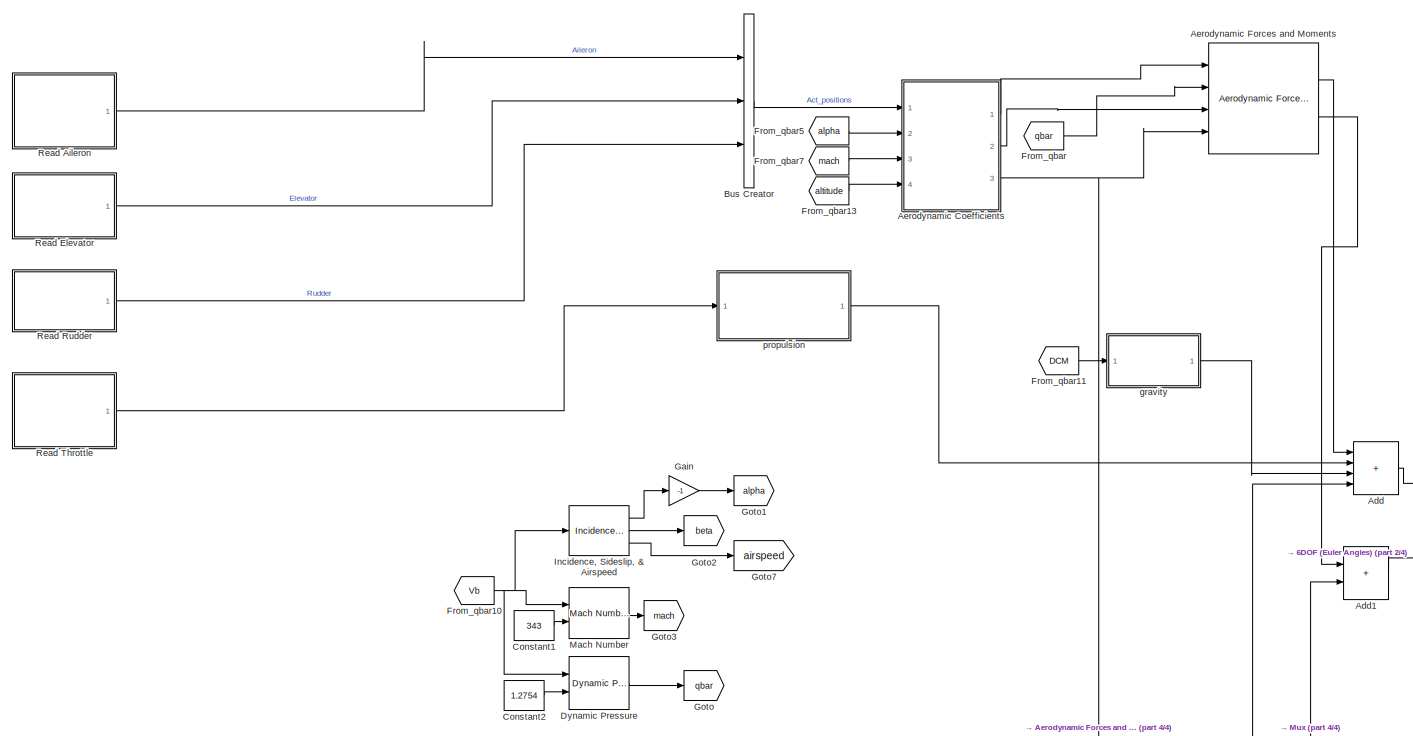
[diagram: root canvas - part 1/4, top left region]
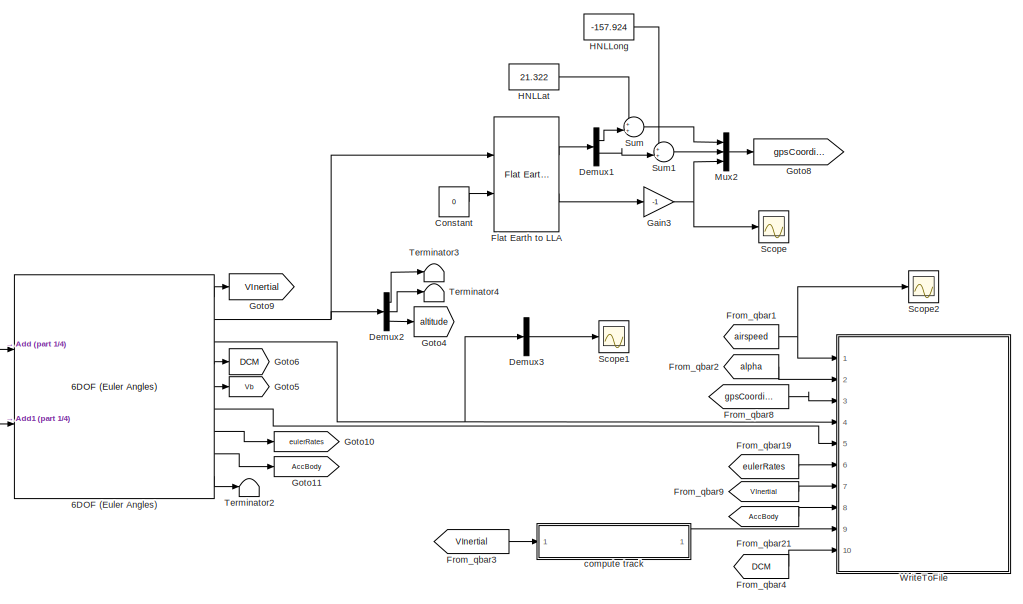
[diagram: root canvas - part 2/4, top right region]
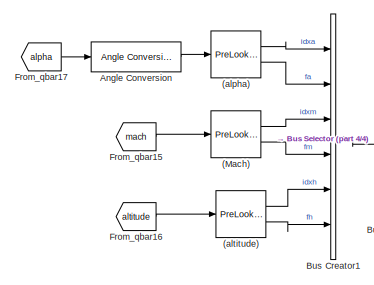
[diagram: root canvas - part 3/4, middle left region]
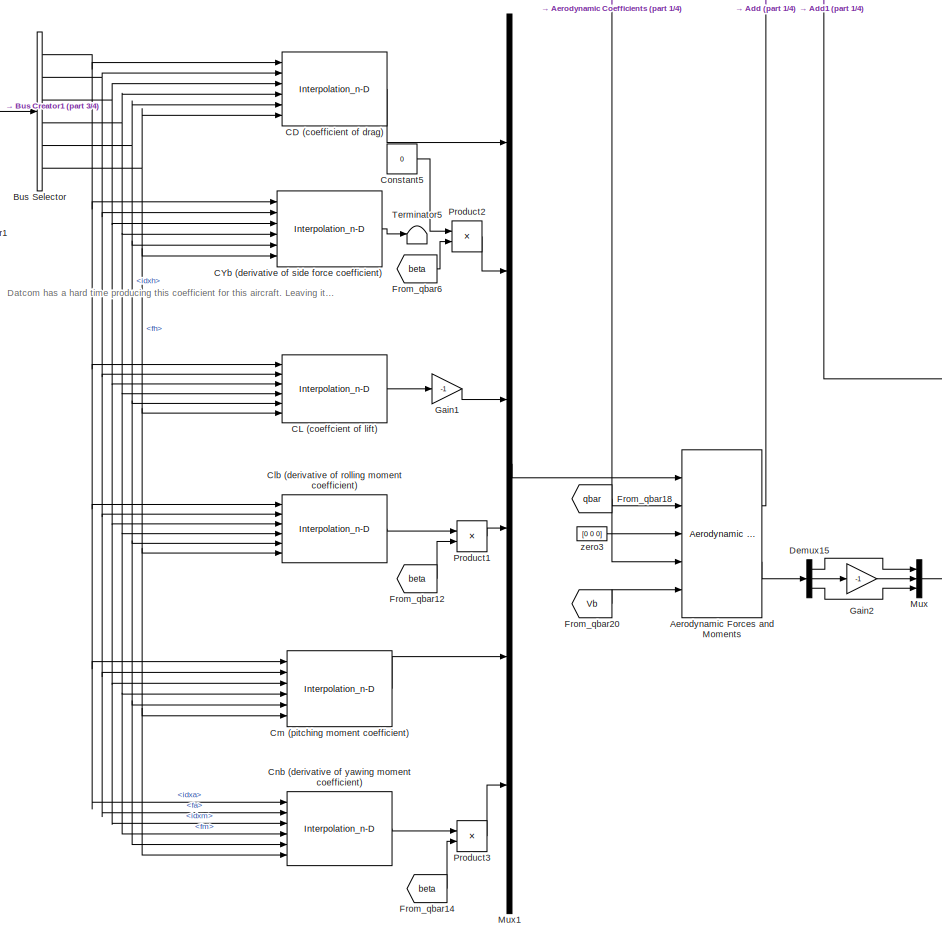
[diagram: root canvas - part 4/4, bottom center region]
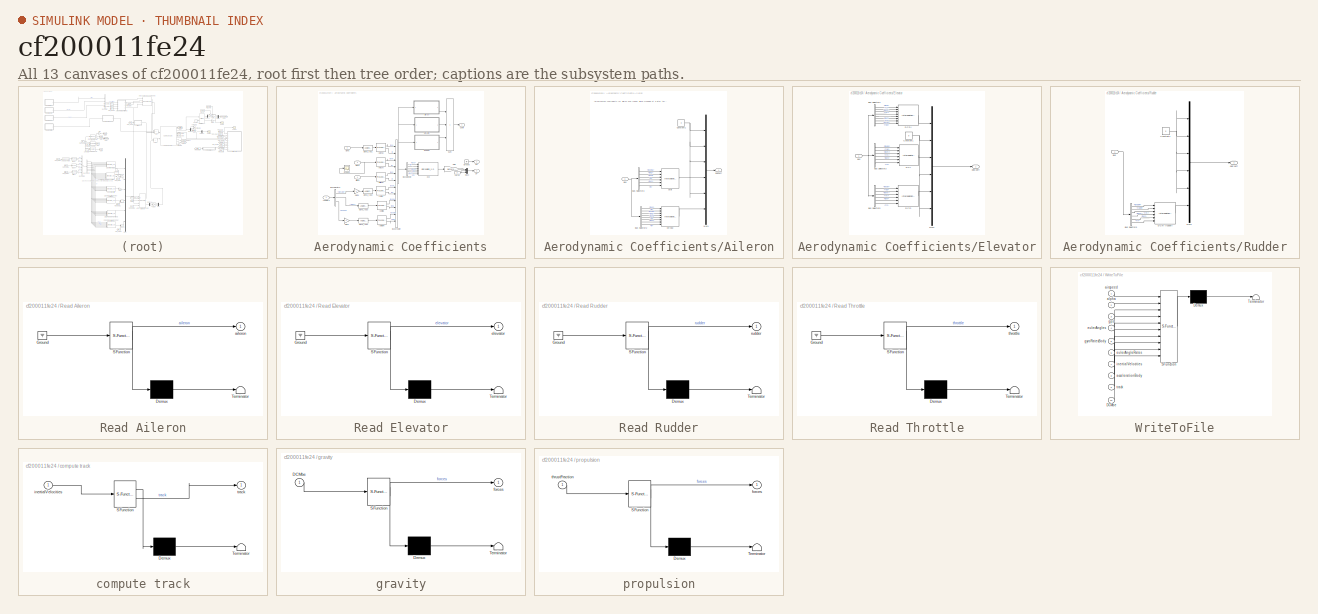
[diagram: thumbnail index - all 13 canvases of the model, root first then tree order]
MODEL slx_cf200011fe24
KIND model
CONFIG AbsTol = auto
CONFIG EnableMultiTasking = off
CONFIG FixedStep = 0.02
CONFIG MaxStep = auto
CONFIG MinStep = auto
CONFIG RelTol = 1e-3
CONFIG SampleTimeConstraint = Unconstrained
CONFIG SolverName = FixedStepAuto
CONFIG StartTime = 0.0
CONFIG StopTime = 3
BLOCK [PreLookup] (Mach)
  BeginIndexSearchUsingPreviousIndexResult = on
  BreakpointsData = aero{1}.mach
  DiagnosticForOutOfRangeInput = Warning
  ExtrapMethod = Linear
  FractionDataTypeStr = double
  IndexDataTypeStr = int32
  InputPortMap = u0
  Ports = [1, 2]
BLOCK [PreLookup] (alpha)
  BeginIndexSearchUsingPreviousIndexResult = on
  BreakpointsData = aero{1}.alpha
  DiagnosticForOutOfRangeInput = Warning
  ExtrapMethod = Linear
  FractionDataTypeStr = double
  IndexDataTypeStr = int32
  InputPortMap = u0
  Ports = [1, 2]
BLOCK [PreLookup] (altitude)
  BeginIndexSearchUsingPreviousIndexResult = on
  BreakpointsData = aero{1}.alt
  DiagnosticForOutOfRangeInput = Warning
  ExtrapMethod = Linear
  FractionDataTypeStr = double
  IndexDataTypeStr = int32
  InputPortMap = u0
  Ports = [1, 2]
BLOCK [Reference] 6DOF (Euler Angles)  REF=shared6dof/6DOF (Euler Angles)
  Ports = [2, 9]
  SourceBlock = shared6dof/6DOF (Euler Angles)
  SourceProductBaseCode = AE,PW,DR,MT,UV,VE
  SourceType = 6DOF EoM (Body Axis)
BLOCK [Sum] Add
  IconShape = rectangular
  Inputs = ++++
  Ports = [4, 1]
BLOCK [Sum] Add1
  IconShape = rectangular
  Ports = [2, 1]
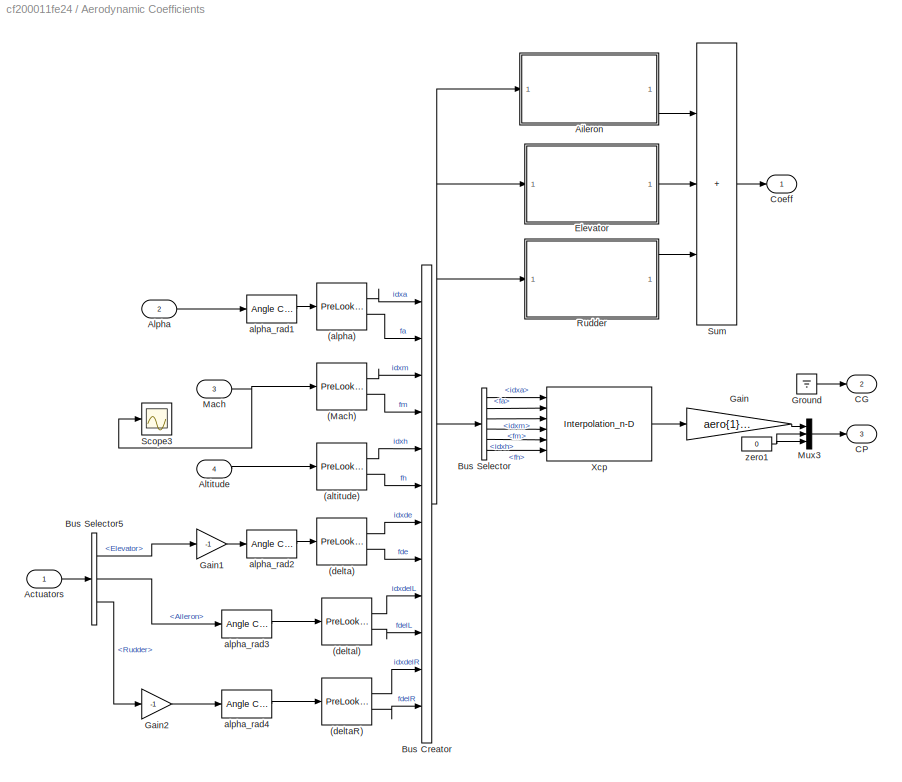
BLOCK [SubSystem] Aerodynamic Coefficients
  NameLocation = top
  Ports = [4, 3]
  RequestExecContextInheritance = off
BLOCK [PreLookup] Aerodynamic Coefficients/(Mach)
  BeginIndexSearchUsingPreviousIndexResult = on
  BreakpointsData = aero{1}.mach
  ExtrapMethod = Linear
  FractionDataTypeStr = double
  IndexDataTypeStr = int32
  InputPortMap = u0
  Ports = [1, 2]
BLOCK [PreLookup] Aerodynamic Coefficients/(alpha)
  BeginIndexSearchUsingPreviousIndexResult = on
  BreakpointsData = aero{1}.alpha
  ExtrapMethod = Linear
  FractionDataTypeStr = double
  IndexDataTypeStr = int32
  InputPortMap = u0
  Ports = [1, 2]
BLOCK [PreLookup] Aerodynamic Coefficients/(altitude)
  BeginIndexSearchUsingPreviousIndexResult = on
  BreakpointsData = aero{1}.alt
  ExtrapMethod = Linear
  FractionDataTypeStr = double
  IndexDataTypeStr = int32
  InputPortMap = u0
  Ports = [1, 2]
BLOCK [PreLookup] Aerodynamic Coefficients/(delta)
  BeginIndexSearchUsingPreviousIndexResult = on
  BreakpointsData = aero{1}.delta
  ExtrapMethod = Linear
  FractionDataTypeStr = double
  IndexDataTypeStr = int32
  InputPortMap = u0
  Ports = [1, 2]
BLOCK [PreLookup] Aerodynamic Coefficients/(deltaR)
  BeginIndexSearchUsingPreviousIndexResult = on
  BreakpointsData = aero{3}.delta
  ExtrapMethod = Linear
  FractionDataTypeStr = double
  IndexDataTypeStr = int32
  InputPortMap = u0
  Ports = [1, 2]
BLOCK [PreLookup] Aerodynamic Coefficients/(deltal)
  BeginIndexSearchUsingPreviousIndexResult = on
  BreakpointsData = aero{2}.deltal
  ExtrapMethod = Linear
  FractionDataTypeStr = double
  IndexDataTypeStr = int32
  InputPortMap = u0
  Ports = [1, 2]
BLOCK [Inport] Aerodynamic Coefficients/Actuators
BLOCK [SubSystem] Aerodynamic Coefficients/Aileron
  Ports = [1, 1]
  RequestExecContextInheritance = off
BLOCK [Inport] Aerodynamic Coefficients/Aileron/Bus
BLOCK [BusSelector] Aerodynamic Coefficients/Aileron/Bus Selector2
  OutputSignals = idxa,fa,idxdelL,fdelL,idxm,fm,idxh,fh
  Ports = [1, 8]
BLOCK [BusSelector] Aerodynamic Coefficients/Aileron/Bus Selector3
  OutputSignals = idxdelL,fdelL,idxm,fm,idxh,fh
  Ports = [1, 6]
BLOCK [Interpolation_n-D] Aerodynamic Coefficients/Aileron/CmYaw 
  InputPortMap = u0,u1,u2,u3,u4,u5,u6,u7
  NumberOfTableDimensions = 4
  Ports = [8, 1]
  RemoveProtectionIndex = on
  Table = aero{2}.cn_asy
BLOCK [Constant] Aerodynamic Coefficients/Aileron/Constant1
  Value = 0
BLOCK [Mux] Aerodynamic Coefficients/Aileron/Mux1
  Inputs = 6
  Ports = [6, 1]
BLOCK [Interpolation_n-D] Aerodynamic Coefficients/Aileron/clroll
  InputPortMap = u0,u1,u2,u3,u4,u5
  NumberOfTableDimensions = 3
  Ports = [6, 1]
  RemoveProtectionIndex = on
  Table = permute(aero{2}.clroll,[1  2  3])
BLOCK [Outport] Aerodynamic Coefficients/Aileron/delCoeff
  VectorParamsAs1DForOutWhenUnconnected = off
BLOCK [Inport] Aerodynamic Coefficients/Alpha
  Port = 2
BLOCK [Inport] Aerodynamic Coefficients/Altitude
  Port = 4
BLOCK [BusCreator] Aerodynamic Coefficients/Bus Creator
  DisplayOption = bar
  InheritFromInputs = on
  Inputs = 12
  Ports = [12, 1]
BLOCK [BusSelector] Aerodynamic Coefficients/Bus Selector
  OutputSignals = idxa,fa,idxm,fm,idxh,fh
  Ports = [1, 6]
BLOCK [BusSelector] Aerodynamic Coefficients/Bus Selector5
  OutputSignals = Elevator,Aileron,Rudder
  Ports = [1, 3]
BLOCK [Outport] Aerodynamic Coefficients/CG
  InitialOutput = 0
  Port = 2
  PortDimensions = 3
  VectorParamsAs1DForOutWhenUnconnected = off
BLOCK [Outport] Aerodynamic Coefficients/CP
  InitialOutput = 0
  Port = 3
  PortDimensions = 3
  VectorParamsAs1DForOutWhenUnconnected = off
BLOCK [Outport] Aerodynamic Coefficients/Coeff
  InitialOutput = 0
  VectorParamsAs1DForOutWhenUnconnected = off
BLOCK [SubSystem] Aerodynamic Coefficients/Elevator
  Ports = [1, 1]
  RequestExecContextInheritance = off
BLOCK [Inport] Aerodynamic Coefficients/Elevator/Bus
  NameLocation = top
BLOCK [BusSelector] Aerodynamic Coefficients/Elevator/Bus Selector2
  OutputSignals = idxa,fa,idxm,fm,idxh,fh,idxde,fde
  Ports = [1, 8]
BLOCK [BusSelector] Aerodynamic Coefficients/Elevator/Bus Selector3
  OutputSignals = idxde,fde,idxm,fm,idxh,fh
  Ports = [1, 6]
BLOCK [BusSelector] Aerodynamic Coefficients/Elevator/Bus Selector5
  OutputSignals = idxde,fde,idxm,fm,idxh,fh
  Ports = [1, 6]
BLOCK [Constant] Aerodynamic Coefficients/Elevator/Constant1
  Value = 0
BLOCK [Interpolation_n-D] Aerodynamic Coefficients/Elevator/DCDI
  InputPortMap = u0,u1,u2,u3,u4,u5,u6,u7
  NumberOfTableDimensions = 4
  Ports = [8, 1]
  RemoveProtectionIndex = on
  Table = permute(aero{1}.dcdi_sym,[1 3 4 2 ])
BLOCK [Interpolation_n-D] Aerodynamic Coefficients/Elevator/DCL
  InputPortMap = u0,u1,u2,u3,u4,u5
  NumberOfTableDimensions = 3
  Ports = [6, 1]
  RemoveProtectionIndex = on
  Table = permute(aero{1}.dcl_sym,[1  2  3])
BLOCK [Interpolation_n-D] Aerodynamic Coefficients/Elevator/DCm
  InputPortMap = u0,u1,u2,u3,u4,u5
  NumberOfTableDimensions = 3
  Ports = [6, 1]
  RemoveProtectionIndex = on
  Table = permute(aero{1}.dcm_sym,[1  2  3])
BLOCK [Mux] Aerodynamic Coefficients/Elevator/Mux1
  Inputs = 6
  Ports = [6, 1]
BLOCK [Outport] Aerodynamic Coefficients/Elevator/delCoeff
  VectorParamsAs1DForOutWhenUnconnected = off
BLOCK [Gain] Aerodynamic Coefficients/Gain
  Gain = aero{1}.cbar
BLOCK [Gain] Aerodynamic Coefficients/Gain1
  Gain = -1
BLOCK [Gain] Aerodynamic Coefficients/Gain2
  Gain = -1
BLOCK [Ground] Aerodynamic Coefficients/Ground
BLOCK [Inport] Aerodynamic Coefficients/Mach
  Port = 3
BLOCK [Mux] Aerodynamic Coefficients/Mux3
  DisplayOption = bar
  Inputs = 3
  Ports = [3, 1]
BLOCK [SubSystem] Aerodynamic Coefficients/Rudder
  Ports = [1, 1]
  RequestExecContextInheritance = off
BLOCK [Inport] Aerodynamic Coefficients/Rudder/Bus
  NameLocation = top
BLOCK [BusSelector] Aerodynamic Coefficients/Rudder/Bus Selector5
  OutputSignals = idxdelR,fdelR,idxm,fm,idxh,fh
  Ports = [1, 6]
BLOCK [Constant] Aerodynamic Coefficients/Rudder/Constant1
  Value = 0
BLOCK [Interpolation_n-D] Aerodynamic Coefficients/Rudder/DCm (rudder)
  InputPortMap = u0,u1,u2,u3,u4,u5
  NumberOfTableDimensions = 3
  Ports = [6, 1]
  RemoveProtectionIndex = on
  Table = permute(aero{3}.dcm_sym,[1  2  3])
BLOCK [Mux] Aerodynamic Coefficients/Rudder/Mux1
  Inputs = 6
  Ports = [6, 1]
BLOCK [Outport] Aerodynamic Coefficients/Rudder/delCoeff
  VectorParamsAs1DForOutWhenUnconnected = off
BLOCK [Scope] Aerodynamic Coefficients/Scope3
  Floating = off
  NumInputPorts = 1
  Ports = [1]
  ScopeSpecificationString = Simulink.scopes.TimeScopeBlockCfg('CurrentConfiguration', extmgr.ConfigurationSet(extmgr.Configuration('Core','General UI',true),extmgr.Configuration('Core','Source UI',true),extmgr.Configuration('Sources','WiredSimulink',true,'DataLoggingVariableName','ScopeData8'),extmgr.Configuration('Visuals','Time Domain',true,'SerializedDisplays',{struct('MinYLimReal','0.03517','MaxYLimReal','0.26657','YLabe...<+1396ch>
BLOCK [Sum] Aerodynamic Coefficients/Sum
  IconShape = rectangular
  InputSameDT = on
  Inputs = 3
  OutDataTypeStr = Inherit: Same as first input
  Ports = [3, 1]
  SaturateOnIntegerOverflow = on
BLOCK [Interpolation_n-D] Aerodynamic Coefficients/Xcp
  InputPortMap = u0,u1,u2,u3,u4,u5
  NumberOfTableDimensions = 3
  OutDataTypeStr = double
  Ports = [6, 1]
  Table = permute(aero{1}.xcp,[1  2  3])
BLOCK [Reference] Aerodynamic Coefficients/alpha_rad1  REF=aerolibconvert2/Angle Conversion
  NameLocation = top
  Ports = [1, 1]
  SourceBlock = aerolibconvert2/Angle Conversion
  SourceProductBaseCode = AE
  SourceType = Angle Conversion
BLOCK [Reference] Aerodynamic Coefficients/alpha_rad2  REF=aerolibconvert2/Angle Conversion
  NameLocation = top
  Ports = [1, 1]
  SourceBlock = aerolibconvert2/Angle Conversion
  SourceProductBaseCode = AE
  SourceType = Angle Conversion
BLOCK [Reference] Aerodynamic Coefficients/alpha_rad3  REF=aerolibconvert2/Angle Conversion
  NameLocation = top
  Ports = [1, 1]
  SourceBlock = aerolibconvert2/Angle Conversion
  SourceProductBaseCode = AE
  SourceType = Angle Conversion
BLOCK [Reference] Aerodynamic Coefficients/alpha_rad4  REF=aerolibconvert2/Angle Conversion
  NameLocation = top
  Ports = [1, 1]
  SourceBlock = aerolibconvert2/Angle Conversion
  SourceProductBaseCode = AE
  SourceType = Angle Conversion
BLOCK [Constant] Aerodynamic Coefficients/zero1
  Value = 0
BLOCK [Reference] Aerodynamic Forces and Moments  REF=aerolibadyn/Aerodynamic
Forces and Moments 
  Ports = [5, 2]
  SourceBlock = aerolibadyn/Aerodynamic\nForces and Moments
  SourceProductBaseCode = AE
  SourceType = Aerodynamic Forces and Moments
BLOCK [Reference] Aerodynamic Forces and Moments   REF=aerolibadyn/Aerodynamic
Forces and Moments 
  Ports = [4, 2]
  SourceBlock = aerolibadyn/Aerodynamic\nForces and Moments
  SourceProductBaseCode = AE
  SourceType = Aerodynamic Forces and Moments
BLOCK [Reference] Angle Conversion  REF=aerolibconvert2/Angle Conversion
  Ports = [1, 1]
  SourceBlock = aerolibconvert2/Angle Conversion
  SourceProductBaseCode = AE
  SourceType = Angle Conversion
BLOCK [BusCreator] Bus Creator
  DisplayOption = bar
  InheritFromInputs = on
  Inputs = 3
  Ports = [3, 1]
BLOCK [BusCreator] Bus Creator1
  DisplayOption = bar
  InheritFromInputs = on
  Inputs = 6
  Ports = [6, 1]
BLOCK [BusSelector] Bus Selector
  OutputSignals = idxa,fa,idxm,fm,idxh,fh
  Ports = [1, 6]
BLOCK [Interpolation_n-D] CD (coefficient of drag)
  DiagnosticForOutOfRangeInput = Warning
  InputPortMap = u0,u1,u2,u3,u4,u5
  NumberOfTableDimensions = 3
  OutDataTypeStr = double
  Ports = [6, 1]
  Table = permute(aero{1}.cd,[1  2  3])
BLOCK [Interpolation_n-D] CL (coeffcient of lift)
  DiagnosticForOutOfRangeInput = Warning
  InputPortMap = u0,u1,u2,u3,u4,u5
  NumberOfTableDimensions = 3
  OutDataTypeStr = double
  Ports = [6, 1]
  Table = permute(aero{1}.cl,[1  2  3])
BLOCK [Interpolation_n-D] CYb (derivative of side force coefficient)
  DiagnosticForOutOfRangeInput = Warning
  InputPortMap = u0,u1,u2,u3,u4,u5
  NumberOfTableDimensions = 3
  OutDataTypeStr = double
  Ports = [6, 1]
  Table = permute(aero{1}.cyb,[1  2  3])
BLOCK [Interpolation_n-D] Clb (derivative of rolling moment coefficient)
  DiagnosticForOutOfRangeInput = Warning
  InputPortMap = u0,u1,u2,u3,u4,u5
  NumberOfTableDimensions = 3
  OutDataTypeStr = double
  Ports = [6, 1]
  Table = permute(aero{1}.clb,[1  2  3])
BLOCK [Interpolation_n-D] Cm (pitching moment coefficient)
  DiagnosticForOutOfRangeInput = Warning
  InputPortMap = u0,u1,u2,u3,u4,u5
  NumberOfTableDimensions = 3
  OutDataTypeStr = double
  Ports = [6, 1]
  Table = permute(aero{1}.cm,[1  2  3])
BLOCK [Interpolation_n-D] Cnb (derivative of yawing moment coefficient)
  DiagnosticForOutOfRangeInput = Warning
  InputPortMap = u0,u1,u2,u3,u4,u5
  NumberOfTableDimensions = 3
  OutDataTypeStr = double
  Ports = [6, 1]
  Table = permute(aero{1}.cnb,[1  2  3])
BLOCK [Constant] Constant
  Value = 0
BLOCK [Constant] Constant1
  Value = 343
BLOCK [Constant] Constant2
  Value = 1.2754
BLOCK [Constant] Constant5
  Value = 0
BLOCK [Demux] Demux1
  Outputs = 2
  Ports = [1, 2]
BLOCK [Demux] Demux15
  Outputs = 3
  Ports = [1, 3]
BLOCK [Demux] Demux2
  Outputs = 3
  Ports = [1, 3]
BLOCK [Demux] Demux3
  Outputs = 3
  Ports = [1, 3]
BLOCK [Reference] Dynamic Pressure  REF=aerolibasang/Dynamic Pressure
  Ports = [2, 1]
  SourceBlock = aerolibasang/Dynamic Pressure
  SourceProductBaseCode = AE
  SourceType = Dynamic Pressure
BLOCK [Reference] Flat Earth to LLA  REF=aerolibtransform2/Flat Earth to LLA
  Ports = [2, 2]
  SourceBlock = aerolibtransform2/Flat Earth to LLA
  SourceProductBaseCode = AE
  SourceType = Flat Earth to LLA
BLOCK [From] From_qbar
  GotoTag = qbar
BLOCK [From] From_qbar1
  GotoTag = airspeed
BLOCK [From] From_qbar10
  GotoTag = Vb
BLOCK [From] From_qbar11
  GotoTag = DCM
BLOCK [From] From_qbar12
  GotoTag = beta
BLOCK [From] From_qbar13
  GotoTag = altitude
BLOCK [From] From_qbar14
  GotoTag = beta
BLOCK [From] From_qbar15
  GotoTag = mach
BLOCK [From] From_qbar16
  GotoTag = altitude
BLOCK [From] From_qbar17
  GotoTag = alpha
BLOCK [From] From_qbar18
  GotoTag = qbar
BLOCK [From] From_qbar19
  GotoTag = eulerRates
BLOCK [From] From_qbar2
  GotoTag = alpha
BLOCK [From] From_qbar20
  GotoTag = Vb
BLOCK [From] From_qbar21
  GotoTag = AccBody
BLOCK [From] From_qbar3
  GotoTag = VInertial
BLOCK [From] From_qbar4
  GotoTag = DCM
BLOCK [From] From_qbar5
  GotoTag = alpha
BLOCK [From] From_qbar6
  GotoTag = beta
BLOCK [From] From_qbar7
  GotoTag = mach
BLOCK [From] From_qbar8
  GotoTag = gpsCoordinates
BLOCK [From] From_qbar9
  GotoTag = VInertial
BLOCK [Gain] Gain
  Gain = -1
BLOCK [Gain] Gain1
  Gain = -1
BLOCK [Gain] Gain2
  Gain = -1
BLOCK [Gain] Gain3
  Gain = -1
BLOCK [Goto] Goto
  GotoTag = qbar
BLOCK [Goto] Goto1
  GotoTag = alpha
BLOCK [Goto] Goto10
  GotoTag = eulerRates
BLOCK [Goto] Goto11
  GotoTag = AccBody
BLOCK [Goto] Goto2
  GotoTag = beta
BLOCK [Goto] Goto3
  GotoTag = mach
BLOCK [Goto] Goto4
  GotoTag = altitude
BLOCK [Goto] Goto5
  GotoTag = Vb
BLOCK [Goto] Goto6
  GotoTag = DCM
BLOCK [Goto] Goto7
  GotoTag = airspeed
BLOCK [Goto] Goto8
  GotoTag = gpsCoordinates
BLOCK [Goto] Goto9
  GotoTag = VInertial
BLOCK [Constant] HNLLat
  Value = 21.322
BLOCK [Constant] HNLLong
  Value = -157.924
BLOCK [Reference] Incidence, Sideslip, & Airspeed  REF=aerolibasang/Incidence, Sideslip,
& Airspeed
  Ports = [1, 3]
  SourceBlock = aerolibasang/Incidence, Sideslip,\n& Airspeed
  SourceProductBaseCode = AE
  SourceType = Incidence,Sideslip,&Airspeed
BLOCK [Reference] Mach Number  REF=aerolibasang/Mach Number
  Ports = [2, 1]
  SourceBlock = aerolibasang/Mach Number
  SourceProductBaseCode = AE
  SourceType = Mach Number
BLOCK [Mux] Mux
  DisplayOption = bar
  Inputs = 3
  Ports = [3, 1]
BLOCK [Mux] Mux1
  DisplayOption = bar
  Inputs = 6
  Ports = [6, 1]
BLOCK [Mux] Mux2
  DisplayOption = bar
  Inputs = 3
  Ports = [3, 1]
BLOCK [Product] Product1
  Ports = [2, 1]
  RndMeth = Zero
BLOCK [Product] Product2
  Ports = [2, 1]
  RndMeth = Zero
BLOCK [Product] Product3
  Ports = [2, 1]
  RndMeth = Zero
BLOCK [SubSystem] Read Aileron
  ErrorFcn = Stateflow.Translate.translate
  PermitHierarchicalResolution = ExplicitOnly
  Ports = [0, 1]
  RequestExecContextInheritance = off
  SFBlockType = MATLAB Function
  TreatAsAtomicUnit = on
BLOCK [Demux] Read Aileron/ Demux 
  Outputs = 1
  Ports = [1, 1]
BLOCK [Ground] Read Aileron/ Ground 
BLOCK [S-Function] Read Aileron/ SFunction 
  EnableBusSupport = on
  FunctionName = sf_sfun
  PortCounts = [1 2]
  Ports = [1, 2]
  SFcnIsStateOwnerBlock = off
  SFunctionDeploymentMode = off
  Tag = Stateflow S-Function 2
BLOCK [Terminator] Read Aileron/ Terminator 
BLOCK [Outport] Read Aileron/aileron
  VectorParamsAs1DForOutWhenUnconnected = off
BLOCK [SubSystem] Read Elevator
  ErrorFcn = Stateflow.Translate.translate
  PermitHierarchicalResolution = ExplicitOnly
  Ports = [0, 1]
  RequestExecContextInheritance = off
  SFBlockType = MATLAB Function
  TreatAsAtomicUnit = on
BLOCK [Demux] Read Elevator/ Demux 
  Outputs = 1
  Ports = [1, 1]
BLOCK [Ground] Read Elevator/ Ground 
BLOCK [S-Function] Read Elevator/ SFunction 
  EnableBusSupport = on
  FunctionName = sf_sfun
  PortCounts = [1 2]
  Ports = [1, 2]
  SFcnIsStateOwnerBlock = off
  SFunctionDeploymentMode = off
  Tag = Stateflow S-Function 5
BLOCK [Terminator] Read Elevator/ Terminator 
BLOCK [Outport] Read Elevator/elevator
  VectorParamsAs1DForOutWhenUnconnected = off
BLOCK [SubSystem] Read Rudder
  ErrorFcn = Stateflow.Translate.translate
  PermitHierarchicalResolution = ExplicitOnly
  Ports = [0, 1]
  RequestExecContextInheritance = off
  SFBlockType = MATLAB Function
  TreatAsAtomicUnit = on
BLOCK [Demux] Read Rudder/ Demux 
  Outputs = 1
  Ports = [1, 1]
BLOCK [Ground] Read Rudder/ Ground 
BLOCK [S-Function] Read Rudder/ SFunction 
  EnableBusSupport = on
  FunctionName = sf_sfun
  PortCounts = [1 2]
  Ports = [1, 2]
  SFcnIsStateOwnerBlock = off
  SFunctionDeploymentMode = off
  Tag = Stateflow S-Function 4
BLOCK [Terminator] Read Rudder/ Terminator 
BLOCK [Outport] Read Rudder/rudder
  VectorParamsAs1DForOutWhenUnconnected = off
BLOCK [SubSystem] Read Throttle
  ErrorFcn = Stateflow.Translate.translate
  PermitHierarchicalResolution = ExplicitOnly
  Ports = [0, 1]
  RequestExecContextInheritance = off
  SFBlockType = MATLAB Function
  TreatAsAtomicUnit = on
BLOCK [Demux] Read Throttle/ Demux 
  Outputs = 1
  Ports = [1, 1]
BLOCK [Ground] Read Throttle/ Ground 
BLOCK [S-Function] Read Throttle/ SFunction 
  EnableBusSupport = on
  FunctionName = sf_sfun
  PortCounts = [1 2]
  Ports = [1, 2]
  SFcnIsStateOwnerBlock = off
  SFunctionDeploymentMode = off
  Tag = Stateflow S-Function 3
BLOCK [Terminator] Read Throttle/ Terminator 
BLOCK [Outport] Read Throttle/throttle
  VectorParamsAs1DForOutWhenUnconnected = off
BLOCK [Scope] Scope
  Floating = off
  NumInputPorts = 1
  Ports = [1]
  ScopeSpecificationString = Simulink.scopes.TimeScopeBlockCfg('CurrentConfiguration', extmgr.ConfigurationSet(extmgr.Configuration('Core','General UI',true),extmgr.Configuration('Core','Source UI',true),extmgr.Configuration('Sources','WiredSimulink',true,'DataLoggingVariableName','ScopeData1'),extmgr.Configuration('Visuals','Time Domain',true,'SerializedDisplays',{struct('MinYLimReal','14.57195','MaxYLimReal','68.85249','YLa...<+1446ch>
BLOCK [Scope] Scope1
  Floating = off
  NumInputPorts = 1
  Ports = [1]
  ScopeSpecificationString = Simulink.scopes.TimeScopeBlockCfg('CurrentConfiguration', extmgr.ConfigurationSet(extmgr.Configuration('Core','General UI',true),extmgr.Configuration('Core','Source UI',true),extmgr.Configuration('Sources','WiredSimulink',true,'DataLoggingVariableName','ScopeData2'),extmgr.Configuration('Visuals','Time Domain',true,'SerializedDisplays',{struct('MinYLimReal','-0.9067','MaxYLimReal','0.10557','YLabe...<+1436ch>
BLOCK [Scope] Scope2
  Floating = off
  NumInputPorts = 1
  Ports = [1]
  ScopeSpecificationString = Simulink.scopes.TimeScopeBlockCfg('CurrentConfiguration', extmgr.ConfigurationSet(extmgr.Configuration('Core','General UI',true),extmgr.Configuration('Core','Source UI',true),extmgr.Configuration('Sources','WiredSimulink',true,'DataLoggingVariableName','ScopeData3'),extmgr.Configuration('Visuals','Time Domain',true,'SerializedDisplays',{struct('MinYLimReal','29.5096','MaxYLimReal','32.63272','YLab...<+1442ch>
BLOCK [Sum] Sum
  Inputs = ++|
  Ports = [2, 1]
BLOCK [Sum] Sum1
  Inputs = ++|
  Ports = [2, 1]
BLOCK [Terminator] Terminator2
BLOCK [Terminator] Terminator3
BLOCK [Terminator] Terminator4
BLOCK [Terminator] Terminator5
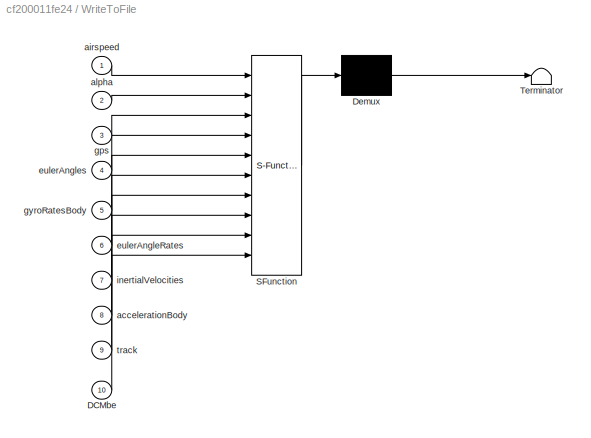
BLOCK [SubSystem] WriteToFile
  ErrorFcn = Stateflow.Translate.translate
  PermitHierarchicalResolution = ExplicitOnly
  Ports = [10]
  RequestExecContextInheritance = off
  SFBlockType = MATLAB Function
  TreatAsAtomicUnit = on
BLOCK [Demux] WriteToFile/ Demux 
  Outputs = 1
  Ports = [1, 1]
BLOCK [S-Function] WriteToFile/ SFunction 
  EnableBusSupport = on
  FunctionName = sf_sfun
  PortCounts = [10 1]
  Ports = [10, 1]
  SFcnIsStateOwnerBlock = off
  SFunctionDeploymentMode = off
  Tag = Stateflow S-Function 1
BLOCK [Terminator] WriteToFile/ Terminator 
BLOCK [Inport] WriteToFile/DCMbe
  Port = 10
BLOCK [Inport] WriteToFile/accelerationBody
  Port = 8
BLOCK [Inport] WriteToFile/airspeed
BLOCK [Inport] WriteToFile/alpha
  Port = 2
BLOCK [Inport] WriteToFile/eulerAngleRates
  Port = 6
BLOCK [Inport] WriteToFile/eulerAngles
  Port = 4
BLOCK [Inport] WriteToFile/gps
  Port = 3
BLOCK [Inport] WriteToFile/gyroRatesBody
  Port = 5
BLOCK [Inport] WriteToFile/inertialVelocities
  Port = 7
BLOCK [Inport] WriteToFile/track
  Port = 9
BLOCK [SubSystem] compute track
  ErrorFcn = Stateflow.Translate.translate
  PermitHierarchicalResolution = ExplicitOnly
  Ports = [1, 1]
  RequestExecContextInheritance = off
  SFBlockType = MATLAB Function
  TreatAsAtomicUnit = on
BLOCK [Demux] compute track/ Demux 
  Outputs = 1
  Ports = [1, 1]
BLOCK [S-Function] compute track/ SFunction 
  EnableBusSupport = on
  FunctionName = sf_sfun
  PortCounts = [1 2]
  Ports = [1, 2]
  SFcnIsStateOwnerBlock = off
  SFunctionDeploymentMode = off
  Tag = Stateflow S-Function 6
BLOCK [Terminator] compute track/ Terminator 
BLOCK [Inport] compute track/inertialVelocities
BLOCK [Outport] compute track/track
BLOCK [SubSystem] gravity
  ErrorFcn = Stateflow.Translate.translate
  PermitHierarchicalResolution = ExplicitOnly
  Ports = [1, 1]
  RequestExecContextInheritance = off
  SFBlockType = MATLAB Function
  TreatAsAtomicUnit = on
BLOCK [Demux] gravity/ Demux 
  Outputs = 1
  Ports = [1, 1]
BLOCK [S-Function] gravity/ SFunction 
  EnableBusSupport = on
  FunctionName = sf_sfun
  PortCounts = [1 2]
  Ports = [1, 2]
  SFcnIsStateOwnerBlock = off
  SFunctionDeploymentMode = off
  Tag = Stateflow S-Function 7
BLOCK [Terminator] gravity/ Terminator 
BLOCK [Inport] gravity/DCMbe
BLOCK [Outport] gravity/forces
BLOCK [SubSystem] propulsion
  ErrorFcn = Stateflow.Translate.translate
  PermitHierarchicalResolution = ExplicitOnly
  Ports = [1, 1]
  RequestExecContextInheritance = off
  SFBlockType = MATLAB Function
  TreatAsAtomicUnit = on
BLOCK [Demux] propulsion/ Demux 
  Outputs = 1
  Ports = [1, 1]
BLOCK [S-Function] propulsion/ SFunction 
  EnableBusSupport = on
  FunctionName = sf_sfun
  PortCounts = [1 2]
  Ports = [1, 2]
  SFcnIsStateOwnerBlock = off
  SFunctionDeploymentMode = off
  Tag = Stateflow S-Function 8
BLOCK [Terminator] propulsion/ Terminator 
BLOCK [Outport] propulsion/forces
BLOCK [Inport] propulsion/thrustFraction
BLOCK [Constant] zero3
  Value = [0 0 0]
ANNOTATION (root): Datcom has a hard time producing this coefficient for this aircraft. Leaving it out for the time being.
ANNOTATION Aerodynamic Coefficients/Aileron: Aerodynamics coefficients for aileron and rudder will be modeled at a later time when 6DOF model is developed.
LINE (Mach):1 -> Bus Creator1:3
LINE (Mach):2 -> Bus Creator1:4
LINE (alpha):1 -> Bus Creator1:1
LINE (alpha):2 -> Bus Creator1:2
LINE (altitude):1 -> Bus Creator1:5
LINE (altitude):2 -> Bus Creator1:6
LINE 6DOF (Euler Angles):1 -> Goto9:1
NET 6DOF (Euler Angles):2 -> Demux2:1, Flat Earth to LLA:1
NET 6DOF (Euler Angles):3 -> Demux3:1, WriteToFile:4
LINE 6DOF (Euler Angles):4 -> Goto6:1
LINE 6DOF (Euler Angles):5 -> Goto5:1
LINE 6DOF (Euler Angles):6 -> WriteToFile:5
LINE 6DOF (Euler Angles):7 -> Goto10:1
LINE 6DOF (Euler Angles):8 -> Goto11:1
LINE 6DOF (Euler Angles):9 -> Terminator2:1
LINE Add1:1 -> 6DOF (Euler Angles):2
LINE Add:1 -> 6DOF (Euler Angles):1
LINE Aerodynamic Coefficients/(Mach):1 -> Aerodynamic Coefficients/Bus Creator:3
LINE Aerodynamic Coefficients/(Mach):2 -> Aerodynamic Coefficients/Bus Creator:4
LINE Aerodynamic Coefficients/(alpha):1 -> Aerodynamic Coefficients/Bus Creator:1
LINE Aerodynamic Coefficients/(alpha):2 -> Aerodynamic Coefficients/Bus Creator:2
LINE Aerodynamic Coefficients/(altitude):1 -> Aerodynamic Coefficients/Bus Creator:5
LINE Aerodynamic Coefficients/(altitude):2 -> Aerodynamic Coefficients/Bus Creator:6
LINE Aerodynamic Coefficients/(delta):1 -> Aerodynamic Coefficients/Bus Creator:7
LINE Aerodynamic Coefficients/(delta):2 -> Aerodynamic Coefficients/Bus Creator:8
LINE Aerodynamic Coefficients/(deltaR):1 -> Aerodynamic Coefficients/Bus Creator:11
LINE Aerodynamic Coefficients/(deltaR):2 -> Aerodynamic Coefficients/Bus Creator:12
LINE Aerodynamic Coefficients/(deltal):1 -> Aerodynamic Coefficients/Bus Creator:9
LINE Aerodynamic Coefficients/(deltal):2 -> Aerodynamic Coefficients/Bus Creator:10
LINE Aerodynamic Coefficients/Actuators:1 -> Aerodynamic Coefficients/Bus Selector5:1
LINE Aerodynamic Coefficients/Aileron/Bus Selector2:1 -> Aerodynamic Coefficients/Aileron/CmYaw :1
LINE Aerodynamic Coefficients/Aileron/Bus Selector2:2 -> Aerodynamic Coefficients/Aileron/CmYaw :2
LINE Aerodynamic Coefficients/Aileron/Bus Selector2:3 -> Aerodynamic Coefficients/Aileron/CmYaw :3
LINE Aerodynamic Coefficients/Aileron/Bus Selector2:4 -> Aerodynamic Coefficients/Aileron/CmYaw :4
LINE Aerodynamic Coefficients/Aileron/Bus Selector2:5 -> Aerodynamic Coefficients/Aileron/CmYaw :5
LINE Aerodynamic Coefficients/Aileron/Bus Selector2:6 -> Aerodynamic Coefficients/Aileron/CmYaw :6
LINE Aerodynamic Coefficients/Aileron/Bus Selector2:7 -> Aerodynamic Coefficients/Aileron/CmYaw :7
LINE Aerodynamic Coefficients/Aileron/Bus Selector2:8 -> Aerodynamic Coefficients/Aileron/CmYaw :8
LINE Aerodynamic Coefficients/Aileron/Bus Selector3:1 -> Aerodynamic Coefficients/Aileron/clroll:1
LINE Aerodynamic Coefficients/Aileron/Bus Selector3:2 -> Aerodynamic Coefficients/Aileron/clroll:2
LINE Aerodynamic Coefficients/Aileron/Bus Selector3:3 -> Aerodynamic Coefficients/Aileron/clroll:3
LINE Aerodynamic Coefficients/Aileron/Bus Selector3:4 -> Aerodynamic Coefficients/Aileron/clroll:4
LINE Aerodynamic Coefficients/Aileron/Bus Selector3:5 -> Aerodynamic Coefficients/Aileron/clroll:5
LINE Aerodynamic Coefficients/Aileron/Bus Selector3:6 -> Aerodynamic Coefficients/Aileron/clroll:6
NET Aerodynamic Coefficients/Aileron/Bus:1 -> Aerodynamic Coefficients/Aileron/Bus Selector2:1, Aerodynamic Coefficients/Aileron/Bus Selector3:1
LINE Aerodynamic Coefficients/Aileron/CmYaw :1 -> Aerodynamic Coefficients/Aileron/Mux1:6
NET Aerodynamic Coefficients/Aileron/Constant1:1 -> Aerodynamic Coefficients/Aileron/Mux1:1, Aerodynamic Coefficients/Aileron/Mux1:2, Aerodynamic Coefficients/Aileron/Mux1:3, Aerodynamic Coefficients/Aileron/Mux1:5
LINE Aerodynamic Coefficients/Aileron/Mux1:1 -> Aerodynamic Coefficients/Aileron/delCoeff:1
LINE Aerodynamic Coefficients/Aileron/clroll:1 -> Aerodynamic Coefficients/Aileron/Mux1:4
LINE Aerodynamic Coefficients/Aileron:1 -> Aerodynamic Coefficients/Sum:1
LINE Aerodynamic Coefficients/Alpha:1 -> Aerodynamic Coefficients/alpha_rad1:1
LINE Aerodynamic Coefficients/Altitude:1 -> Aerodynamic Coefficients/(altitude):1
NET Aerodynamic Coefficients/Bus Creator:1 -> Aerodynamic Coefficients/Aileron:1, Aerodynamic Coefficients/Bus Selector:1, Aerodynamic Coefficients/Elevator:1, Aerodynamic Coefficients/Rudder:1
LINE Aerodynamic Coefficients/Bus Selector5:1 -> Aerodynamic Coefficients/Gain1:1
LINE Aerodynamic Coefficients/Bus Selector5:2 -> Aerodynamic Coefficients/alpha_rad3:1
LINE Aerodynamic Coefficients/Bus Selector5:3 -> Aerodynamic Coefficients/Gain2:1
LINE Aerodynamic Coefficients/Bus Selector:1 -> Aerodynamic Coefficients/Xcp:1
LINE Aerodynamic Coefficients/Bus Selector:2 -> Aerodynamic Coefficients/Xcp:2
LINE Aerodynamic Coefficients/Bus Selector:3 -> Aerodynamic Coefficients/Xcp:3
LINE Aerodynamic Coefficients/Bus Selector:4 -> Aerodynamic Coefficients/Xcp:4
LINE Aerodynamic Coefficients/Bus Selector:5 -> Aerodynamic Coefficients/Xcp:5
LINE Aerodynamic Coefficients/Bus Selector:6 -> Aerodynamic Coefficients/Xcp:6
LINE Aerodynamic Coefficients/Elevator/Bus Selector2:1 -> Aerodynamic Coefficients/Elevator/DCDI:1
LINE Aerodynamic Coefficients/Elevator/Bus Selector2:2 -> Aerodynamic Coefficients/Elevator/DCDI:2
LINE Aerodynamic Coefficients/Elevator/Bus Selector2:3 -> Aerodynamic Coefficients/Elevator/DCDI:3
LINE Aerodynamic Coefficients/Elevator/Bus Selector2:4 -> Aerodynamic Coefficients/Elevator/DCDI:4
LINE Aerodynamic Coefficients/Elevator/Bus Selector2:5 -> Aerodynamic Coefficients/Elevator/DCDI:5
LINE Aerodynamic Coefficients/Elevator/Bus Selector2:6 -> Aerodynamic Coefficients/Elevator/DCDI:6
LINE Aerodynamic Coefficients/Elevator/Bus Selector2:7 -> Aerodynamic Coefficients/Elevator/DCDI:7
LINE Aerodynamic Coefficients/Elevator/Bus Selector2:8 -> Aerodynamic Coefficients/Elevator/DCDI:8
LINE Aerodynamic Coefficients/Elevator/Bus Selector3:1 -> Aerodynamic Coefficients/Elevator/DCL:1
LINE Aerodynamic Coefficients/Elevator/Bus Selector3:2 -> Aerodynamic Coefficients/Elevator/DCL:2
LINE Aerodynamic Coefficients/Elevator/Bus Selector3:3 -> Aerodynamic Coefficients/Elevator/DCL:3
LINE Aerodynamic Coefficients/Elevator/Bus Selector3:4 -> Aerodynamic Coefficients/Elevator/DCL:4
LINE Aerodynamic Coefficients/Elevator/Bus Selector3:5 -> Aerodynamic Coefficients/Elevator/DCL:5
LINE Aerodynamic Coefficients/Elevator/Bus Selector3:6 -> Aerodynamic Coefficients/Elevator/DCL:6
LINE Aerodynamic Coefficients/Elevator/Bus Selector5:1 -> Aerodynamic Coefficients/Elevator/DCm:1
LINE Aerodynamic Coefficients/Elevator/Bus Selector5:2 -> Aerodynamic Coefficients/Elevator/DCm:2
LINE Aerodynamic Coefficients/Elevator/Bus Selector5:3 -> Aerodynamic Coefficients/Elevator/DCm:3
LINE Aerodynamic Coefficients/Elevator/Bus Selector5:4 -> Aerodynamic Coefficients/Elevator/DCm:4
LINE Aerodynamic Coefficients/Elevator/Bus Selector5:5 -> Aerodynamic Coefficients/Elevator/DCm:5
LINE Aerodynamic Coefficients/Elevator/Bus Selector5:6 -> Aerodynamic Coefficients/Elevator/DCm:6
NET Aerodynamic Coefficients/Elevator/Bus:1 -> Aerodynamic Coefficients/Elevator/Bus Selector2:1, Aerodynamic Coefficients/Elevator/Bus Selector3:1, Aerodynamic Coefficients/Elevator/Bus Selector5:1
NET Aerodynamic Coefficients/Elevator/Constant1:1 -> Aerodynamic Coefficients/Elevator/Mux1:2, Aerodynamic Coefficients/Elevator/Mux1:4, Aerodynamic Coefficients/Elevator/Mux1:6
LINE Aerodynamic Coefficients/Elevator/DCDI:1 -> Aerodynamic Coefficients/Elevator/Mux1:1
LINE Aerodynamic Coefficients/Elevator/DCL:1 -> Aerodynamic Coefficients/Elevator/Mux1:3
LINE Aerodynamic Coefficients/Elevator/DCm:1 -> Aerodynamic Coefficients/Elevator/Mux1:5
LINE Aerodynamic Coefficients/Elevator/Mux1:1 -> Aerodynamic Coefficients/Elevator/delCoeff:1
LINE Aerodynamic Coefficients/Elevator:1 -> Aerodynamic Coefficients/Sum:2
LINE Aerodynamic Coefficients/Gain1:1 -> Aerodynamic Coefficients/alpha_rad2:1
LINE Aerodynamic Coefficients/Gain2:1 -> Aerodynamic Coefficients/alpha_rad4:1
LINE Aerodynamic Coefficients/Gain:1 -> Aerodynamic Coefficients/Mux3:1
LINE Aerodynamic Coefficients/Ground:1 -> Aerodynamic Coefficients/CG:1
NET Aerodynamic Coefficients/Mach:1 -> Aerodynamic Coefficients/(Mach):1, Aerodynamic Coefficients/Scope3:1
LINE Aerodynamic Coefficients/Mux3:1 -> Aerodynamic Coefficients/CP:1
LINE Aerodynamic Coefficients/Rudder/Bus Selector5:1 -> Aerodynamic Coefficients/Rudder/DCm (rudder):1
LINE Aerodynamic Coefficients/Rudder/Bus Selector5:2 -> Aerodynamic Coefficients/Rudder/DCm (rudder):2
LINE Aerodynamic Coefficients/Rudder/Bus Selector5:3 -> Aerodynamic Coefficients/Rudder/DCm (rudder):3
LINE Aerodynamic Coefficients/Rudder/Bus Selector5:4 -> Aerodynamic Coefficients/Rudder/DCm (rudder):4
LINE Aerodynamic Coefficients/Rudder/Bus Selector5:5 -> Aerodynamic Coefficients/Rudder/DCm (rudder):5
LINE Aerodynamic Coefficients/Rudder/Bus Selector5:6 -> Aerodynamic Coefficients/Rudder/DCm (rudder):6
LINE Aerodynamic Coefficients/Rudder/Bus:1 -> Aerodynamic Coefficients/Rudder/Bus Selector5:1
NET Aerodynamic Coefficients/Rudder/Constant1:1 -> Aerodynamic Coefficients/Rudder/Mux1:1, Aerodynamic Coefficients/Rudder/Mux1:2, Aerodynamic Coefficients/Rudder/Mux1:3, Aerodynamic Coefficients/Rudder/Mux1:4, Aerodynamic Coefficients/Rudder/Mux1:5
LINE Aerodynamic Coefficients/Rudder/DCm (rudder):1 -> Aerodynamic Coefficients/Rudder/Mux1:6
LINE Aerodynamic Coefficients/Rudder/Mux1:1 -> Aerodynamic Coefficients/Rudder/delCoeff:1
LINE Aerodynamic Coefficients/Rudder:1 -> Aerodynamic Coefficients/Sum:3
LINE Aerodynamic Coefficients/Sum:1 -> Aerodynamic Coefficients/Coeff:1
LINE Aerodynamic Coefficients/Xcp:1 -> Aerodynamic Coefficients/Gain:1
LINE Aerodynamic Coefficients/alpha_rad1:1 -> Aerodynamic Coefficients/(alpha):1
LINE Aerodynamic Coefficients/alpha_rad2:1 -> Aerodynamic Coefficients/(delta):1
LINE Aerodynamic Coefficients/alpha_rad3:1 -> Aerodynamic Coefficients/(deltal):1
LINE Aerodynamic Coefficients/alpha_rad4:1 -> Aerodynamic Coefficients/(deltaR):1
NET Aerodynamic Coefficients/zero1:1 -> Aerodynamic Coefficients/Mux3:2, Aerodynamic Coefficients/Mux3:3
LINE Aerodynamic Coefficients:1 -> Aerodynamic Forces and Moments :1
LINE Aerodynamic Coefficients:2 -> Aerodynamic Forces and Moments :3
NET Aerodynamic Coefficients:3 -> Aerodynamic Forces and Moments :4, Aerodynamic Forces and Moments:4
LINE Aerodynamic Forces and Moments :1 -> Add:1
LINE Aerodynamic Forces and Moments :2 -> Add1:1
LINE Aerodynamic Forces and Moments:1 -> Add:4
LINE Aerodynamic Forces and Moments:2 -> Demux15:1
LINE Angle Conversion:1 -> (alpha):1
LINE Bus Creator1:1 -> Bus Selector:1
LINE Bus Creator:1 -> Aerodynamic Coefficients:1
NET Bus Selector:1 -> CD (coefficient of drag):1, CL (coeffcient of lift):1, CYb (derivative of side force coefficient):1, Clb (derivative of rolling moment coefficient):1, Cm (pitching moment coefficient):1, Cnb (derivative of yawing moment coefficient):1
NET Bus Selector:2 -> CD (coefficient of drag):2, CL (coeffcient of lift):2, CYb (derivative of side force coefficient):2, Clb (derivative of rolling moment coefficient):2, Cm (pitching moment coefficient):2, Cnb (derivative of yawing moment coefficient):2
NET Bus Selector:3 -> CD (coefficient of drag):3, CL (coeffcient of lift):3, CYb (derivative of side force coefficient):3, Clb (derivative of rolling moment coefficient):3, Cm (pitching moment coefficient):3, Cnb (derivative of yawing moment coefficient):3
NET Bus Selector:4 -> CD (coefficient of drag):4, CL (coeffcient of lift):4, CYb (derivative of side force coefficient):4, Clb (derivative of rolling moment coefficient):4, Cm (pitching moment coefficient):4, Cnb (derivative of yawing moment coefficient):4
NET Bus Selector:5 -> CD (coefficient of drag):5, CL (coeffcient of lift):5, CYb (derivative of side force coefficient):5, Clb (derivative of rolling moment coefficient):5, Cm (pitching moment coefficient):5, Cnb (derivative of yawing moment coefficient):5
NET Bus Selector:6 -> CD (coefficient of drag):6, CL (coeffcient of lift):6, CYb (derivative of side force coefficient):6, Clb (derivative of rolling moment coefficient):6, Cm (pitching moment coefficient):6, Cnb (derivative of yawing moment coefficient):6
LINE CD (coefficient of drag):1 -> Mux1:1
LINE CL (coeffcient of lift):1 -> Gain1:1
LINE CYb (derivative of side force coefficient):1 -> Terminator5:1
LINE Clb (derivative of rolling moment coefficient):1 -> Product1:1
LINE Cm (pitching moment coefficient):1 -> Mux1:5
LINE Cnb (derivative of yawing moment coefficient):1 -> Product3:1
LINE Constant1:1 -> Mach Number:2
LINE Constant2:1 -> Dynamic Pressure:2
LINE Constant5:1 -> Product2:1
LINE Constant:1 -> Flat Earth to LLA:2
LINE Demux15:1 -> Mux:1
LINE Demux15:2 -> Gain2:1
LINE Demux15:3 -> Mux:3
LINE Demux1:1 -> Sum:2
LINE Demux1:2 -> Sum1:2
LINE Demux2:1 -> Terminator3:1
LINE Demux2:2 -> Terminator4:1
LINE Demux2:3 -> Goto4:1
LINE Demux3:2 -> Scope1:1
LINE Dynamic Pressure:1 -> Goto:1
LINE Flat Earth to LLA:1 -> Demux1:1
LINE Flat Earth to LLA:2 -> Gain3:1
NET From_qbar10:1 -> Dynamic Pressure:1, Incidence, Sideslip, & Airspeed:1, Mach Number:1
LINE From_qbar11:1 -> gravity:1
LINE From_qbar12:1 -> Product1:2
LINE From_qbar13:1 -> Aerodynamic Coefficients:4
LINE From_qbar14:1 -> Product3:2
LINE From_qbar15:1 -> (Mach):1
LINE From_qbar16:1 -> (altitude):1
LINE From_qbar17:1 -> Angle Conversion:1
LINE From_qbar18:1 -> Aerodynamic Forces and Moments:2
LINE From_qbar19:1 -> WriteToFile:6
NET From_qbar1:1 -> Scope2:1, WriteToFile:1
LINE From_qbar20:1 -> Aerodynamic Forces and Moments:5
LINE From_qbar21:1 -> WriteToFile:8
LINE From_qbar2:1 -> WriteToFile:2
LINE From_qbar3:1 -> compute track:1
LINE From_qbar4:1 -> WriteToFile:10
LINE From_qbar5:1 -> Aerodynamic Coefficients:2
LINE From_qbar6:1 -> Product2:2
LINE From_qbar7:1 -> Aerodynamic Coefficients:3
LINE From_qbar8:1 -> WriteToFile:3
LINE From_qbar9:1 -> WriteToFile:7
LINE From_qbar:1 -> Aerodynamic Forces and Moments :2
LINE Gain1:1 -> Mux1:3
LINE Gain2:1 -> Mux:2
NET Gain3:1 -> Mux2:3, Scope:1
LINE Gain:1 -> Goto1:1
LINE HNLLat:1 -> Sum:1
LINE HNLLong:1 -> Sum1:1
LINE Incidence, Sideslip, & Airspeed:1 -> Gain:1
LINE Incidence, Sideslip, & Airspeed:2 -> Goto2:1
LINE Incidence, Sideslip, & Airspeed:3 -> Goto7:1
LINE Mach Number:1 -> Goto3:1
LINE Mux1:1 -> Aerodynamic Forces and Moments:1
LINE Mux2:1 -> Goto8:1
LINE Mux:1 -> Add1:2
LINE Product1:1 -> Mux1:4
LINE Product2:1 -> Mux1:2
LINE Product3:1 -> Mux1:6
LINE Read Aileron:1 -> Bus Creator:1
LINE Read Elevator:1 -> Bus Creator:2
LINE Read Rudder:1 -> Bus Creator:3
LINE Read Throttle:1 -> propulsion:1
LINE Sum1:1 -> Mux2:2
LINE Sum:1 -> Mux2:1
LINE compute track:1 -> WriteToFile:9
LINE gravity:1 -> Add:3
LINE propulsion:1 -> Add:2
LINE zero3:1 -> Aerodynamic Forces and Moments:3
note: NET lines group one-source signal fan-out (src -> all destinations, sorted); 1:1 wires keep LINE
CHART WriteToFile states=1 transitions=1
  STATE_LABEL 'eML_blk_kernel()'
  STATE_LABEL "SCRIPT:\n%#codegen\nfunction fcn(airspeed, alpha, gps, eulerAngles, gyroRatesBody, eulerAngleRates, inertialVelocities, accelerationBody, track, DCMbe)\n\ngravityInertial = [0;0;-9.8];\ngravityBody = DCMbe * gravityInertial;\n\nairSpeedFile = fopen( 'SensorOutputs/airspeed.txt', 'a' );\n\naoaFile = fopen( 'SensorOutputs/angleOfAttack.txt', 'a' );\n\ntrackFile = fopen( 'SensorOutputs/track.txt', 'a' );\n\nlatSp...<+1998ch>"
CHART Read Aileron states=1 transitions=1
  STATE_LABEL 'eML_blk_kernel()'
  STATE_LABEL "SCRIPT:\n%#codegen\nfunction aileron = fcn()\n\ns = readfile('ActuatorCommands/aileron.txt');\n\nlatestData = lastStr2double(s);\n\nmaxAileronDeflect = 0.2618; % radians\n\naileron = (latestData * maxAileronDeflect) / 100.0;\n"
CHART Read Throttle states=1 transitions=1
  STATE_LABEL 'eML_blk_kernel()'
  STATE_LABEL "SCRIPT:\n%#codegen\nfunction throttle = fcn()\n\ns = readfile('ActuatorCommands/throttle.txt');\nlatestData = lastStr2double(s);\n\nthrottle = (latestData / 100.0);\n"
CHART Read Rudder states=1 transitions=1
  STATE_LABEL 'eML_blk_kernel()'
  STATE_LABEL "SCRIPT:\n%#codegen\nfunction rudder = fcn()\n\ns = readfile('ActuatorCommands/rudder.txt');\nlatestData = lastStr2double(s);\n\nmaxRudderDeflect = 0.2618; % radians\n\nrudder = (latestData * maxRudderDeflect) / 100.0;"
CHART Read Elevator states=1 transitions=1
  STATE_LABEL 'eML_blk_kernel()'
  STATE_LABEL "SCRIPT:\n%#codegen\nfunction elevator = fcn()\n\ns = readfile('ActuatorCommands/elevator.txt');\nlatestData = lastStr2double(s);\n\nmaxElevatorDeflect = 0.2618; % radians\n\nelevator = (latestData * maxElevatorDeflect) / 100.0;\n"
CHART compute track states=1 transitions=1
  STATE_LABEL 'eML_blk_kernel()'
  STATE_LABEL "SCRIPT:\nfunction track = fcn(inertialVelocities)\n\n% We're using longitudinal velocity as the X input so that 0 degrees lines\n% up with north\ntempTrack = atan2(inertialVelocities(2), inertialVelocities(1));\n\nif tempTrack < 0\n    tempTrack = tempTrack + (2 * pi);\nend\n\ntrack = tempTrack;\n"
CHART gravity states=1 transitions=1
  STATE_LABEL 'eML_blk_kernel()'
  STATE_LABEL 'SCRIPT:\n%#codegen\nfunction forces  = fcn(DCMbe)\n\nmass = 1.9; % Kg\ngravityInertial = [0;0;-9.8*mass];\ngravityBody = DCMbe * gravityInertial;\n\nforces = gravityBody;\n'
CHART propulsion states=1 transitions=1
  STATE_LABEL 'eML_blk_kernel()'
  STATE_LABEL "SCRIPT:\n%#codegen\nfunction forces  = fcn(thrustFraction)\n\npercentToThrustFactor = 0.20; % newtons/percent (estimated, if someone 10 years from now comes accross this comment, first of all Hi, I hape your'e having a nice day :). I also hope the fucking pandemic is nothing but a distant memory. Oh yeah and feel free to get legit thrust data).\n\n\nforces = [(percentToThrustFactor*thrustFraction*100);0;...<+5ch>"
CHART  states=0 transitions=0
CHART  states=0 transitions=0
CHART  states=0 transitions=0
CHART  states=0 transitions=0
CHART  states=0 transitions=0
CHART  states=0 transitions=0
CHART  states=0 transitions=0
CHART  states=0 transitions=0
